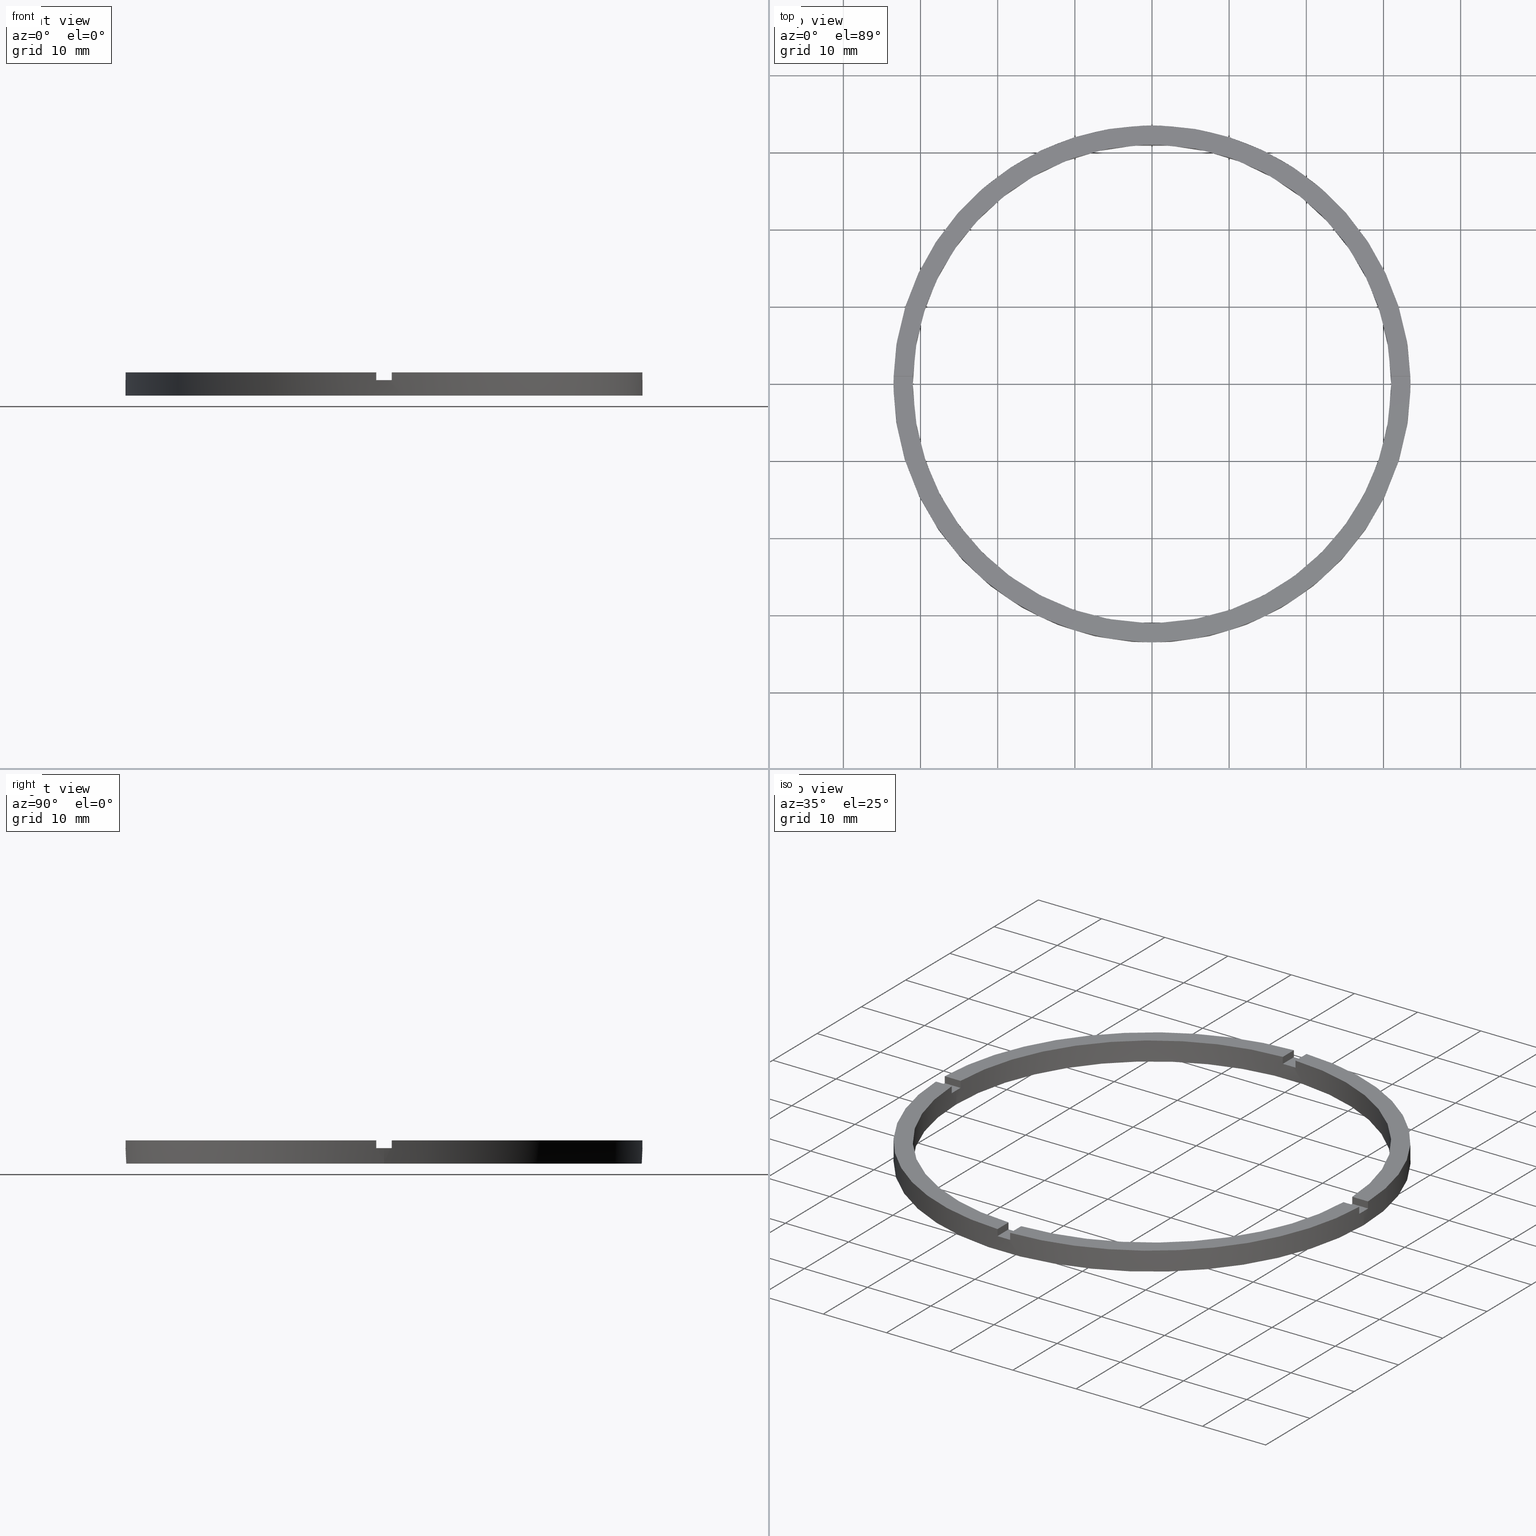
[diagram: canonical four-view strip — front | top / right | iso, engineering-drawing reading convention]
A machine part, canonical four-view strip (front | top / right | iso — engineering-drawing reading convention). The complete STEP part file that produces these views, byte-faithful:
ISO-10303-21;
HEADER;
FILE_DESCRIPTION (( 'STEP AP203' ),
    '1' );
FILE_NAME ('514138.step',
    '2024-12-26T02:41:10',
    ( 'MSI' ),
    ( '' ),
    'SwSTEP 2.0',
    'SolidWorks 2020',
    '' );
FILE_SCHEMA (( 'CONFIG_CONTROL_DESIGN' ));
ENDSEC;

DATA;
#1 = PLANE ( 'NONE',  #219 ) ;
#2 = AXIS2_PLACEMENT_3D ( 'NONE', #455, #492, #459 ) ;
#3 = LINE ( 'NONE', #165, #6 ) ;
#4 = EDGE_CURVE ( 'NONE', #711, #41, #443, .T. ) ;
#5 = CARTESIAN_POINT ( 'NONE',  ( 31.00000000000000000, 3.796405077356795115E-15, 3.000000000000000000 ) ) ;
#6 = VECTOR ( 'NONE', #636, 1000.000000000000000 ) ;
#7 = DIRECTION ( 'NONE',  ( 0.000000000000000000, 0.000000000000000000, 1.000000000000000000 ) ) ;
#8 = CIRCLE ( 'NONE', #248, 33.50000000000000000 ) ;
#9 = DIRECTION ( 'NONE',  ( 0.000000000000000000, 0.000000000000000000, 1.000000000000000000 ) ) ;
#10 = DIRECTION ( 'NONE',  ( -0.000000000000000000, -0.000000000000000000, -1.000000000000000000 ) ) ;
#11 = COORDINATED_UNIVERSAL_TIME_OFFSET ( 8, 0, .AHEAD. ) ;
#12 = CARTESIAN_POINT ( 'NONE',  ( 0.000000000000000000, 0.000000000000000000, 3.000000000000000000 ) ) ;
#13 = EDGE_CURVE ( 'NONE', #188, #596, #182, .T. ) ;
#14 = CARTESIAN_POINT ( 'NONE',  ( 0.000000000000000000, 0.000000000000000000, 3.000000000000000000 ) ) ;
#15 = EDGE_CURVE ( 'NONE', #110, #596, #704, .T. ) ;
#16 = EDGE_CURVE ( 'NONE', #709, #716, #365, .T. ) ;
#17 = DIRECTION ( 'NONE',  ( -0.000000000000000000, -0.000000000000000000, -1.000000000000000000 ) ) ;
#18 = DATE_AND_TIME ( #291, #28 ) ;
#19 = VERTEX_POINT ( 'NONE', #437 ) ;
#20 = ORIENTED_EDGE ( 'NONE', *, *, #486, .F. ) ;
#21 = LOCAL_TIME ( 10, 41, 10.00000000000000000, #48 ) ;
#22 = ORIENTED_EDGE ( 'NONE', *, *, #759, .T. ) ;
#23 = ORIENTED_EDGE ( 'NONE', *, *, #121, .F. ) ;
#24 = DIRECTION ( 'NONE',  ( 1.301042606982605074E-16, -1.000000000000000000, 0.000000000000000000 ) ) ;
#25 = EDGE_CURVE ( 'NONE', #188, #80, #120, .T. ) ;
#26 = APPROVAL_DATE_TIME ( #45, #695 ) ;
#27 = ORIENTED_EDGE ( 'NONE', *, *, #569, .F. ) ;
#28 = LOCAL_TIME ( 10, 41, 10.00000000000000000, #565 ) ;
#29 = DIRECTION ( 'NONE',  ( -0.000000000000000000, -0.000000000000000000, -1.000000000000000000 ) ) ;
#30 = DIRECTION ( 'NONE',  ( -0.000000000000000000, -1.000000000000000000, -0.000000000000000000 ) ) ;
#31 = ORIENTED_EDGE ( 'NONE', *, *, #668, .T. ) ;
#32 = LOCAL_TIME ( 10, 41, 10.00000000000000000, #11 ) ;
#33 = VERTEX_POINT ( 'NONE', #180 ) ;
#34 = APPROVAL_PERSON_ORGANIZATION ( #550, #144, #442 ) ;
#35 = COORDINATED_UNIVERSAL_TIME_OFFSET ( 8, 0, .AHEAD. ) ;
#36 = AXIS2_PLACEMENT_3D ( 'NONE', #680, #7, #164 ) ;
#37 = ORIENTED_EDGE ( 'NONE', *, *, #561, .T. ) ;
#38 = DIRECTION ( 'NONE',  ( -0.000000000000000000, 0.000000000000000000, 1.000000000000000000 ) ) ;
#39 = VECTOR ( 'NONE', #29, 1000.000000000000000 ) ;
#40 = AXIS2_PLACEMENT_3D ( 'NONE', #116, #269, #658 ) ;
#41 = VERTEX_POINT ( 'NONE', #523 ) ;
#42 = LINE ( 'NONE', #249, #68 ) ;
#43 = PLANE ( 'NONE',  #153 ) ;
#44 = ORIENTED_EDGE ( 'NONE', *, *, #740, .T. ) ;
#45 = DATE_AND_TIME ( #547, #32 ) ;
#46 = CIRCLE ( 'NONE', #192, 31.00000000000000000 ) ;
#47 = ORIENTED_EDGE ( 'NONE', *, *, #16, .T. ) ;
#48 = COORDINATED_UNIVERSAL_TIME_OFFSET ( 8, 0, .AHEAD. ) ;
#49 = ORIENTED_EDGE ( 'NONE', *, *, #690, .F. ) ;
#50 = LINE ( 'NONE', #340, #62 ) ;
#51 = AXIS2_PLACEMENT_3D ( 'NONE', #498, #468, #560 ) ;
#52 = ORIENTED_EDGE ( 'NONE', *, *, #736, .F. ) ;
#53 = CARTESIAN_POINT ( 'NONE',  ( 23.49999999999999289, 0.9999999999998411271, 3.000000000000000000 ) ) ;
#54 = VERTEX_POINT ( 'NONE', #666 ) ;
#55 = FACE_OUTER_BOUND ( 'NONE', #84, .T. ) ;
#56 = CARTESIAN_POINT ( 'NONE',  ( 0.9999999999998377964, -23.50000000000018119, 2.000000000000000000 ) ) ;
#57 = CC_DESIGN_PERSON_AND_ORGANIZATION_ASSIGNMENT ( #552, #531, ( #751 ) ) ;
#58 = FACE_OUTER_BOUND ( 'NONE', #642, .T. ) ;
#59 = ORIENTED_EDGE ( 'NONE', *, *, #759, .F. ) ;
#60 = ORIENTED_EDGE ( 'NONE', *, *, #503, .F. ) ;
#61 = ORIENTED_EDGE ( 'NONE', *, *, #217, .T. ) ;
#62 = VECTOR ( 'NONE', #421, 1000.000000000000000 ) ;
#63 = ORIENTED_EDGE ( 'NONE', *, *, #279, .F. ) ;
#64 = ORIENTED_EDGE ( 'NONE', *, *, #486, .T. ) ;
#65 = LINE ( 'NONE', #540, #706 ) ;
#66 = DIRECTION ( 'NONE',  ( 1.000000000000000000, 0.000000000000000000, 0.000000000000000000 ) ) ;
#67 = ORIENTED_EDGE ( 'NONE', *, *, #765, .T. ) ;
#68 = VECTOR ( 'NONE', #466, 1000.000000000000000 ) ;
#69 = ORIENTED_EDGE ( 'NONE', *, *, #424, .T. ) ;
#70 = EDGE_CURVE ( 'NONE', #407, #558, #101, .T. ) ;
#71 = DIRECTION ( 'NONE',  ( 0.000000000000000000, 0.000000000000000000, 1.000000000000000000 ) ) ;
#72 = DIRECTION ( 'NONE',  ( 0.000000000000000000, -0.000000000000000000, 1.000000000000000000 ) ) ;
#73 = DIRECTION ( 'NONE',  ( 0.000000000000000000, 0.000000000000000000, 1.000000000000000000 ) ) ;
#74 = DIRECTION ( 'NONE',  ( 0.000000000000000000, -0.000000000000000000, 1.000000000000000000 ) ) ;
#75 = ORIENTED_EDGE ( 'NONE', *, *, #129, .F. ) ;
#76 = ADVANCED_FACE ( 'NONE', ( #133 ), #755, .F. ) ;
#77 = CARTESIAN_POINT ( 'NONE',  ( -1.000000000000162315, -23.50000000000018119, 2.000000000000000000 ) ) ;
#78 = EDGE_CURVE ( 'NONE', #460, #581, #650, .T. ) ;
#79 = DESIGN_CONTEXT ( 'detailed design', #199, 'design' ) ;
#80 = VERTEX_POINT ( 'NONE', #436 ) ;
#81 = DIRECTION ( 'NONE',  ( 1.000000000000000000, 0.000000000000000000, -0.000000000000000000 ) ) ;
#82 = ORIENTED_EDGE ( 'NONE', *, *, #676, .T. ) ;
#83 = CARTESIAN_POINT ( 'NONE',  ( -1.000000000000160982, -33.48507130050644065, 3.000000000000000000 ) ) ;
#84 = EDGE_LOOP ( 'NONE', ( #335, #289, #146, #315 ) ) ;
#85 = DIRECTION ( 'NONE',  ( -1.301042606982605074E-16, 1.000000000000000000, -0.000000000000000000 ) ) ;
#86 = ORIENTED_EDGE ( 'NONE', *, *, #489, .F. ) ;
#87 = CC_DESIGN_PERSON_AND_ORGANIZATION_ASSIGNMENT ( #309, #757, ( #430 ) ) ;
#88 = DIRECTION ( 'NONE',  ( 1.000000000000000000, 0.000000000000000000, 0.000000000000000000 ) ) ;
#89 = DIRECTION ( 'NONE',  ( 1.000000000000000000, 0.000000000000000000, -0.000000000000000000 ) ) ;
#90 = AXIS2_PLACEMENT_3D ( 'NONE', #257, #553, #172 ) ;
#91 = ORIENTED_EDGE ( 'NONE', *, *, #162, .F. ) ;
#92 = CARTESIAN_POINT ( 'NONE',  ( 0.9999999999999753530, 30.98386676965933617, 2.000000000000000000 ) ) ;
#93 = CARTESIAN_POINT ( 'NONE',  ( 0.000000000000000000, 0.000000000000000000, 3.000000000000000000 ) ) ;
#94 = ORIENTED_EDGE ( 'NONE', *, *, #351, .T. ) ;
#95 = EDGE_CURVE ( 'NONE', #718, #587, #622, .T. ) ;
#96 = ORIENTED_EDGE ( 'NONE', *, *, #373, .F. ) ;
#97 = CARTESIAN_POINT ( 'NONE',  ( 30.98386676965933972, 0.9999999999998414602, 2.000000000000000000 ) ) ;
#98 = VECTOR ( 'NONE', #428, 1000.000000000000000 ) ;
#99 = ORIENTED_EDGE ( 'NONE', *, *, #279, .T. ) ;
#100 = DIRECTION ( 'NONE',  ( 1.000000000000000000, 6.505213034913025371E-17, 0.000000000000000000 ) ) ;
#101 = LINE ( 'NONE', #719, #382 ) ;
#102 = VECTOR ( 'NONE', #220, 1000.000000000000000 ) ;
#103 = DIRECTION ( 'NONE',  ( 0.000000000000000000, 0.000000000000000000, 1.000000000000000000 ) ) ;
#104 = CARTESIAN_POINT ( 'NONE',  ( -30.98386676965933617, 0.9999999999999740208, 3.000000000000000000 ) ) ;
#105 = ORIENTED_EDGE ( 'NONE', *, *, #70, .F. ) ;
#106 = EDGE_CURVE ( 'NONE', #54, #281, #389, .T. ) ;
#107 = FACE_OUTER_BOUND ( 'NONE', #617, .T. ) ;
#108 = EDGE_CURVE ( 'NONE', #80, #132, #635, .T. ) ;
#109 = EDGE_CURVE ( 'NONE', #299, #80, #379, .T. ) ;
#110 = VERTEX_POINT ( 'NONE', #282 ) ;
#111 = DIRECTION ( 'NONE',  ( 1.000000000000000000, 0.000000000000000000, 0.000000000000000000 ) ) ;
#112 = EDGE_LOOP ( 'NONE', ( #347, #64, #700, #640 ) ) ;
#113 = ORIENTED_EDGE ( 'NONE', *, *, #514, .T. ) ;
#114 = ORIENTED_EDGE ( 'NONE', *, *, #472, .F. ) ;
#115 = VERTEX_POINT ( 'NONE', #471 ) ;
#116 = CARTESIAN_POINT ( 'NONE',  ( 0.000000000000000000, 0.000000000000000000, 3.000000000000000000 ) ) ;
#117 = VERTEX_POINT ( 'NONE', #662 ) ;
#118 = ORIENTED_EDGE ( 'NONE', *, *, #677, .T. ) ;
#119 = VERTEX_POINT ( 'NONE', #275 ) ;
#120 = LINE ( 'NONE', #479, #372 ) ;
#121 = EDGE_CURVE ( 'NONE', #633, #54, #359, .T. ) ;
#122 = ORIENTED_EDGE ( 'NONE', *, *, #206, .F. ) ;
#123 = AXIS2_PLACEMENT_3D ( 'NONE', #742, #332, #261 ) ;
#124 = CARTESIAN_POINT ( 'NONE',  ( 0.000000000000000000, 0.000000000000000000, 3.000000000000000000 ) ) ;
#125 = EDGE_LOOP ( 'NONE', ( #322, #661, #654, #378, #625, #44 ) ) ;
#126 = LINE ( 'NONE', #665, #632 ) ;
#127 = CC_DESIGN_PERSON_AND_ORGANIZATION_ASSIGNMENT ( #521, #187, ( #140 ) ) ;
#128 = VERTEX_POINT ( 'NONE', #469 ) ;
#129 = EDGE_CURVE ( 'NONE', #276, #464, #646, .T. ) ;
#130 = CARTESIAN_POINT ( 'NONE',  ( 0.000000000000000000, 0.000000000000000000, 2.000000000000000000 ) ) ;
#131 = DIRECTION ( 'NONE',  ( -0.000000000000000000, 0.000000000000000000, 1.000000000000000000 ) ) ;
#132 = VERTEX_POINT ( 'NONE', #586 ) ;
#133 = FACE_OUTER_BOUND ( 'NONE', #181, .T. ) ;
#134 = PLANE ( 'NONE',  #274 ) ;
#135 = ORIENTED_EDGE ( 'NONE', *, *, #722, .T. ) ;
#136 = CARTESIAN_POINT ( 'NONE',  ( 33.50000000000000000, 4.102566777143633774E-15, 3.000000000000000000 ) ) ;
#137 = VECTOR ( 'NONE', #263, 1000.000000000000000 ) ;
#138 = EDGE_LOOP ( 'NONE', ( #583, #67, #203, #320 ) ) ;
#139 = VECTOR ( 'NONE', #655, 1000.000000000000000 ) ;
#140 = PRODUCT ( '514138', '514138', '', ( #477 ) ) ;
#141 = EDGE_LOOP ( 'NONE', ( #321, #311 ) ) ;
#142 = APPLICATION_CONTEXT ( 'configuration controlled 3d designs of mechanical parts and assemblies' ) ;
#143 = DIRECTION ( 'NONE',  ( 1.000000000000000000, 0.000000000000000000, -0.000000000000000000 ) ) ;
#144 = APPROVAL ( #194, 'δָ��' ) ;
#145 = CIRCLE ( 'NONE', #499, 33.50000000000000000 ) ;
#146 = ORIENTED_EDGE ( 'NONE', *, *, #108, .F. ) ;
#147 = ADVANCED_FACE ( 'NONE', ( #107 ), #43, .T. ) ;
#148 = ORIENTED_EDGE ( 'NONE', *, *, #472, .T. ) ;
#149 = CIRCLE ( 'NONE', #612, 31.00000000000000000 ) ;
#150 = CARTESIAN_POINT ( 'NONE',  ( -1.000000000000160982, -33.48507130050644065, 2.000000000000000000 ) ) ;
#151 = ORIENTED_EDGE ( 'NONE', *, *, #212, .T. ) ;
#152 = CARTESIAN_POINT ( 'NONE',  ( 0.000000000000000000, 0.000000000000000000, 2.000000000000000000 ) ) ;
#153 = AXIS2_PLACEMENT_3D ( 'NONE', #176, #475, #522 ) ;
#154 = VERTEX_POINT ( 'NONE', #594 ) ;
#155 = CYLINDRICAL_SURFACE ( 'NONE', #123, 33.50000000000000000 ) ;
#156 = DIRECTION ( 'NONE',  ( 0.000000000000000000, 0.000000000000000000, 1.000000000000000000 ) ) ;
#157 = FACE_OUTER_BOUND ( 'NONE', #575, .T. ) ;
#158 = CARTESIAN_POINT ( 'NONE',  ( 33.48507130050644776, 0.9999999999998416822, 3.000000000000000000 ) ) ;
#159 = FACE_OUTER_BOUND ( 'NONE', #369, .T. ) ;
#160 = DIRECTION ( 'NONE',  ( 0.000000000000000000, 0.000000000000000000, 1.000000000000000000 ) ) ;
#161 = CARTESIAN_POINT ( 'NONE',  ( 0.000000000000000000, 0.000000000000000000, 2.000000000000000000 ) ) ;
#162 = EDGE_CURVE ( 'NONE', #709, #344, #126, .T. ) ;
#163 = DIRECTION ( 'NONE',  ( 0.000000000000000000, 0.000000000000000000, 1.000000000000000000 ) ) ;
#164 = DIRECTION ( 'NONE',  ( 1.000000000000000000, 0.000000000000000000, 0.000000000000000000 ) ) ;
#165 = CARTESIAN_POINT ( 'NONE',  ( -33.48507130050644065, -1.000000000000026423, 3.000000000000000000 ) ) ;
#166 = EDGE_CURVE ( 'NONE', #191, #117, #393, .T. ) ;
#167 = AXIS2_PLACEMENT_3D ( 'NONE', #488, #412, #616 ) ;
#168 = AXIS2_PLACEMENT_3D ( 'NONE', #420, #735, #701 ) ;
#169 = PLANE ( 'NONE',  #195 ) ;
#170 = DIRECTION ( 'NONE',  ( -0.000000000000000000, -0.000000000000000000, -1.000000000000000000 ) ) ;
#171 = CARTESIAN_POINT ( 'NONE',  ( -30.98386676965933617, -1.000000000000025979, 3.000000000000000000 ) ) ;
#172 = DIRECTION ( 'NONE',  ( 1.000000000000000000, 0.000000000000000000, 0.000000000000000000 ) ) ;
#173 = CC_DESIGN_APPROVAL ( #144, ( #204 ) ) ;
#174 = DIRECTION ( 'NONE',  ( 0.000000000000000000, 0.000000000000000000, 1.000000000000000000 ) ) ;
#175 = CARTESIAN_POINT ( 'NONE',  ( 0.9999999999999753530, 23.50000000000000000, 2.000000000000000000 ) ) ;
#176 = CARTESIAN_POINT ( 'NONE',  ( 0.000000000000000000, 0.000000000000000000, 2.000000000000000000 ) ) ;
#177 = PLANE ( 'NONE',  #778 ) ;
#178 = APPLICATION_PROTOCOL_DEFINITION ( 'international standard', 'config_control_design', 1994, #142 ) ;
#179 = CARTESIAN_POINT ( 'NONE',  ( 0.9999999999999753530, 30.98386676965933617, 3.000000000000000000 ) ) ;
#180 = CARTESIAN_POINT ( 'NONE',  ( 33.48507130050644065, -1.000000000000158318, 3.000000000000000000 ) ) ;
#181 = EDGE_LOOP ( 'NONE', ( #554, #717, #463, #723 ) ) ;
#182 = CIRCLE ( 'NONE', #478, 33.50000000000000000 ) ;
#183 = EDGE_CURVE ( 'NONE', #119, #33, #396, .T. ) ;
#184 = EDGE_LOOP ( 'NONE', ( #358, #69, #96, #585 ) ) ;
#185 = ORIENTED_EDGE ( 'NONE', *, *, #15, .F. ) ;
#186 = ADVANCED_FACE ( 'NONE', ( #638 ), #416, .F. ) ;
#187 = PERSON_AND_ORGANIZATION_ROLE ( 'design_owner' ) ;
#188 = VERTEX_POINT ( 'NONE', #739 ) ;
#189 = VECTOR ( 'NONE', #595, 1000.000000000000000 ) ;
#190 = EDGE_CURVE ( 'NONE', #128, #110, #418, .T. ) ;
#191 = VERTEX_POINT ( 'NONE', #215 ) ;
#192 = AXIS2_PLACEMENT_3D ( 'NONE', #761, #103, #266 ) ;
#193 = CARTESIAN_POINT ( 'NONE',  ( 0.000000000000000000, 0.000000000000000000, 3.000000000000000000 ) ) ;
#194 = APPROVAL_STATUS ( 'not_yet_approved' ) ;
#195 = AXIS2_PLACEMENT_3D ( 'NONE', #255, #334, #429 ) ;
#196 = VERTEX_POINT ( 'NONE', #211 ) ;
#197 = ORIENTED_EDGE ( 'NONE', *, *, #4, .T. ) ;
#198 = EDGE_LOOP ( 'NONE', ( #611, #361 ) ) ;
#199 = APPLICATION_CONTEXT ( 'configuration controlled 3d designs of mechanical parts and assemblies' ) ;
#200 = AXIS2_PLACEMENT_3D ( 'NONE', #14, #696, #89 ) ;
#201 = ORIENTED_EDGE ( 'NONE', *, *, #439, .T. ) ;
#202 = CARTESIAN_POINT ( 'NONE',  ( 0.000000000000000000, 0.000000000000000000, 2.000000000000000000 ) ) ;
#203 = ORIENTED_EDGE ( 'NONE', *, *, #16, .F. ) ;
#204 = SECURITY_CLASSIFICATION ( '', '', #240 ) ;
#205 = VECTOR ( 'NONE', #627, 1000.000000000000000 ) ;
#206 = EDGE_CURVE ( 'NONE', #305, #33, #42, .T. ) ;
#207 = DIRECTION ( 'NONE',  ( 1.000000000000000000, 0.000000000000000000, -0.000000000000000000 ) ) ;
#208 = CARTESIAN_POINT ( 'NONE',  ( 30.98386676965933972, 0.9999999999998414602, 3.000000000000000000 ) ) ;
#209 = PRODUCT_RELATED_PRODUCT_CATEGORY ( 'detail', '', ( #140 ) ) ;
#210 = EDGE_CURVE ( 'NONE', #633, #299, #50, .T. ) ;
#211 = CARTESIAN_POINT ( 'NONE',  ( 31.00000000000000000, 3.796405077356795115E-15, 0.000000000000000000 ) ) ;
#212 = EDGE_CURVE ( 'NONE', #402, #559, #323, .T. ) ;
#213 = DIRECTION ( 'NONE',  ( 0.000000000000000000, 0.000000000000000000, 1.000000000000000000 ) ) ;
#214 = EDGE_CURVE ( 'NONE', #344, #603, #328, .T. ) ;
#215 = CARTESIAN_POINT ( 'NONE',  ( 30.98386676965932907, -1.000000000000158540, 2.000000000000000000 ) ) ;
#216 = CARTESIAN_POINT ( 'NONE',  ( 0.000000000000000000, 0.000000000000000000, 3.000000000000000000 ) ) ;
#217 = EDGE_CURVE ( 'NONE', #154, #407, #316, .T. ) ;
#218 = CARTESIAN_POINT ( 'NONE',  ( 0.000000000000000000, 0.000000000000000000, 3.000000000000000000 ) ) ;
#219 = AXIS2_PLACEMENT_3D ( 'NONE', #202, #74, #81 ) ;
#220 = DIRECTION ( 'NONE',  ( -1.000000000000000000, -6.505213034913025371E-17, -0.000000000000000000 ) ) ;
#221 = AXIS2_PLACEMENT_3D ( 'NONE', #314, #599, #304 ) ;
#222 = DIRECTION ( 'NONE',  ( 1.000000000000000000, 0.000000000000000000, 0.000000000000000000 ) ) ;
#223 = DIRECTION ( 'NONE',  ( 1.000000000000000000, -0.000000000000000000, 0.000000000000000000 ) ) ;
#224 = DIRECTION ( 'NONE',  ( 1.000000000000000000, 0.000000000000000000, 0.000000000000000000 ) ) ;
#225 = AXIS2_PLACEMENT_3D ( 'NONE', #744, #500, #505 ) ;
#226 = DIRECTION ( 'NONE',  ( -1.301042606982605074E-16, 1.000000000000000000, 0.000000000000000000 ) ) ;
#227 = ADVANCED_FACE ( 'NONE', ( #325 ), #641, .T. ) ;
#228 = DIRECTION ( 'NONE',  ( 1.000000000000000000, 0.000000000000000000, 0.000000000000000000 ) ) ;
#229 = DIRECTION ( 'NONE',  ( 0.000000000000000000, 0.000000000000000000, 1.000000000000000000 ) ) ;
#230 = FACE_OUTER_BOUND ( 'NONE', #184, .T. ) ;
#231 = LINE ( 'NONE', #582, #495 ) ;
#232 = ADVANCED_FACE ( 'NONE', ( #589 ), #644, .F. ) ;
#233 = VECTOR ( 'NONE', #738, 1000.000000000000000 ) ;
#234 = CARTESIAN_POINT ( 'NONE',  ( -33.50000000000000000, 0.000000000000000000, 3.000000000000000000 ) ) ;
#235 = PERSON_AND_ORGANIZATION_ROLE ( 'classification_officer' ) ;
#236 = FACE_OUTER_BOUND ( 'NONE', #198, .T. ) ;
#237 = CARTESIAN_POINT ( 'NONE',  ( 30.98386676965932907, -1.000000000000158540, 3.000000000000000000 ) ) ;
#238 = DIRECTION ( 'NONE',  ( -0.000000000000000000, -0.000000000000000000, -1.000000000000000000 ) ) ;
#239 = PLANE ( 'NONE',  #741 ) ;
#240 = SECURITY_CLASSIFICATION_LEVEL ( 'unclassified' ) ;
#241 = DIRECTION ( 'NONE',  ( 1.000000000000000000, 0.000000000000000000, -0.000000000000000000 ) ) ;
#242 = DIRECTION ( 'NONE',  ( -0.000000000000000000, -0.000000000000000000, -1.000000000000000000 ) ) ;
#243 = LINE ( 'NONE', #136, #777 ) ;
#244 = LINE ( 'NONE', #435, #533 ) ;
#245 = CARTESIAN_POINT ( 'NONE',  ( 30.98386676965933972, 0.9999999999998414602, 3.000000000000000000 ) ) ;
#246 = VECTOR ( 'NONE', #728, 1000.000000000000000 ) ;
#247 = CARTESIAN_POINT ( 'NONE',  ( 23.49999999999999289, 0.9999999999998411271, 2.000000000000000000 ) ) ;
#248 = AXIS2_PLACEMENT_3D ( 'NONE', #753, #652, #470 ) ;
#249 = CARTESIAN_POINT ( 'NONE',  ( 23.49999999999999289, -1.000000000000158984, 3.000000000000000000 ) ) ;
#250 = ORGANIZATION ( 'δָ��', 'δָ��', '' ) ;
#251 = COORDINATED_UNIVERSAL_TIME_OFFSET ( 8, 0, .AHEAD. ) ;
#252 = DATE_AND_TIME ( #767, #515 ) ;
#253 = AXIS2_PLACEMENT_3D ( 'NONE', #130, #510, #111 ) ;
#254 = CYLINDRICAL_SURFACE ( 'NONE', #381, 31.00000000000000000 ) ;
#255 = CARTESIAN_POINT ( 'NONE',  ( 23.49999999999999289, -1.000000000000158984, 2.000000000000000000 ) ) ;
#256 = FACE_OUTER_BOUND ( 'NONE', #405, .T. ) ;
#257 = CARTESIAN_POINT ( 'NONE',  ( 0.000000000000000000, 0.000000000000000000, 3.000000000000000000 ) ) ;
#258 = LINE ( 'NONE', #338, #262 ) ;
#259 = APPROVAL_PERSON_ORGANIZATION ( #520, #726, #544 ) ;
#260 = VECTOR ( 'NONE', #71, 1000.000000000000000 ) ;
#261 = DIRECTION ( 'NONE',  ( -1.000000000000000000, 0.000000000000000000, 0.000000000000000000 ) ) ;
#262 = VECTOR ( 'NONE', #426, 1000.000000000000000 ) ;
#263 = DIRECTION ( 'NONE',  ( 0.000000000000000000, 1.000000000000000000, 0.000000000000000000 ) ) ;
#264 = LINE ( 'NONE', #104, #518 ) ;
#265 = LINE ( 'NONE', #395, #246 ) ;
#266 = DIRECTION ( 'NONE',  ( 1.000000000000000000, 0.000000000000000000, 0.000000000000000000 ) ) ;
#267 = EDGE_CURVE ( 'NONE', #371, #637, #574, .T. ) ;
#268 = FACE_OUTER_BOUND ( 'NONE', #297, .T. ) ;
#269 = DIRECTION ( 'NONE',  ( 0.000000000000000000, 0.000000000000000000, 1.000000000000000000 ) ) ;
#270 = VECTOR ( 'NONE', #17, 1000.000000000000000 ) ;
#271 = DIRECTION ( 'NONE',  ( 0.000000000000000000, 0.000000000000000000, 1.000000000000000000 ) ) ;
#272 = PRODUCT_DEFINITION_SHAPE ( 'NONE', 'NONE',  #751 ) ;
#273 = ADVANCED_FACE ( 'NONE', ( #579 ), #177, .F. ) ;
#274 = AXIS2_PLACEMENT_3D ( 'NONE', #727, #730, #482 ) ;
#275 = CARTESIAN_POINT ( 'NONE',  ( 0.9999999999998391287, -33.48507130050644776, 3.000000000000000000 ) ) ;
#276 = VERTEX_POINT ( 'NONE', #355 ) ;
#277 = AXIS2_PLACEMENT_3D ( 'NONE', #684, #72, #228 ) ;
#278 =( NAMED_UNIT ( * ) SI_UNIT ( $, .STERADIAN. ) SOLID_ANGLE_UNIT ( ) );
#279 = EDGE_CURVE ( 'NONE', #191, #402, #46, .T. ) ;
#280 = ORIENTED_EDGE ( 'NONE', *, *, #121, .T. ) ;
#281 = VERTEX_POINT ( 'NONE', #598 ) ;
#282 = CARTESIAN_POINT ( 'NONE',  ( -30.98386676965933617, 0.9999999999999740208, 3.000000000000000000 ) ) ;
#283 = PERSON_AND_ORGANIZATION ( #375, #250 ) ;
#284 = CARTESIAN_POINT ( 'NONE',  ( -23.50000000000018829, 0.9999999999999754641, 3.000000000000000000 ) ) ;
#285 = CARTESIAN_POINT ( 'NONE',  ( 0.9999999999998377964, -23.50000000000018119, 2.000000000000000000 ) ) ;
#286 = APPROVAL_STATUS ( 'not_yet_approved' ) ;
#287 = ORIENTED_EDGE ( 'NONE', *, *, #514, .F. ) ;
#288 = PERSON_AND_ORGANIZATION ( #375, #250 ) ;
#289 = ORIENTED_EDGE ( 'NONE', *, *, #330, .T. ) ;
#290 = ORIENTED_EDGE ( 'NONE', *, *, #267, .F. ) ;
#291 = CALENDAR_DATE ( 2024, 26, 12 ) ;
#292 =( GEOMETRIC_REPRESENTATION_CONTEXT ( 3 ) GLOBAL_UNCERTAINTY_ASSIGNED_CONTEXT ( ( #399 ) ) GLOBAL_UNIT_ASSIGNED_CONTEXT ( ( #370, #480, #278 ) ) REPRESENTATION_CONTEXT ( 'NONE', 'WORKASPACE' ) );
#293 = ORIENTED_EDGE ( 'NONE', *, *, #645, .T. ) ;
#294 = PERSON_AND_ORGANIZATION ( #375, #250 ) ;
#295 = DATE_TIME_ROLE ( 'classification_date' ) ;
#296 = DATE_AND_TIME ( #298, #21 ) ;
#297 = EDGE_LOOP ( 'NONE', ( #86, #151, #342, #82, #23, #634, #659, #614, #657, #61, #631, #580 ) ) ;
#298 = CALENDAR_DATE ( 2024, 26, 12 ) ;
#299 = VERTEX_POINT ( 'NONE', #669 ) ;
#300 = SHAPE_DEFINITION_REPRESENTATION ( #272, #493 ) ;
#301 = ORIENTED_EDGE ( 'NONE', *, *, #25, .T. ) ;
#302 = CARTESIAN_POINT ( 'NONE',  ( -23.50000000000018829, 0.9999999999999754641, 2.000000000000000000 ) ) ;
#303 = ADVANCED_FACE ( 'NONE', ( #55 ), #134, .F. ) ;
#304 = DIRECTION ( 'NONE',  ( 1.000000000000000000, 0.000000000000000000, 0.000000000000000000 ) ) ;
#305 = VERTEX_POINT ( 'NONE', #237 ) ;
#306 = CARTESIAN_POINT ( 'NONE',  ( -33.50000000000000000, 0.000000000000000000, 2.000000000000000000 ) ) ;
#307 = LINE ( 'NONE', #609, #577 ) ;
#308 = ORIENTED_EDGE ( 'NONE', *, *, #106, .T. ) ;
#309 = PERSON_AND_ORGANIZATION ( #375, #250 ) ;
#310 = FACE_OUTER_BOUND ( 'NONE', #454, .T. ) ;
#311 = ORIENTED_EDGE ( 'NONE', *, *, #606, .T. ) ;
#312 = ORIENTED_EDGE ( 'NONE', *, *, #341, .T. ) ;
#313 = ORIENTED_EDGE ( 'NONE', *, *, #212, .F. ) ;
#314 = CARTESIAN_POINT ( 'NONE',  ( 0.000000000000000000, 0.000000000000000000, 0.000000000000000000 ) ) ;
#315 = ORIENTED_EDGE ( 'NONE', *, *, #25, .F. ) ;
#316 = CIRCLE ( 'NONE', #51, 31.00000000000000000 ) ;
#317 = ADVANCED_FACE ( 'NONE', ( #318 ), #763, .F. ) ;
#318 = FACE_OUTER_BOUND ( 'NONE', #353, .T. ) ;
#319 = VECTOR ( 'NONE', #502, 1000.000000000000000 ) ;
#320 = ORIENTED_EDGE ( 'NONE', *, *, #162, .T. ) ;
#321 = ORIENTED_EDGE ( 'NONE', *, *, #446, .T. ) ;
#322 = ORIENTED_EDGE ( 'NONE', *, *, #433, .T. ) ;
#323 = CIRCLE ( 'NONE', #729, 31.00000000000000000 ) ;
#324 = ORIENTED_EDGE ( 'NONE', *, *, #527, .T. ) ;
#325 = FACE_OUTER_BOUND ( 'NONE', #417, .T. ) ;
#326 = ORIENTED_EDGE ( 'NONE', *, *, #677, .F. ) ;
#327 = CARTESIAN_POINT ( 'NONE',  ( -31.00000000000000000, 0.000000000000000000, 0.000000000000000000 ) ) ;
#328 = LINE ( 'NONE', #406, #319 ) ;
#329 = ORIENTED_EDGE ( 'NONE', *, *, #686, .F. ) ;
#330 = EDGE_CURVE ( 'NONE', #128, #132, #307, .T. ) ;
#331 = AXIS2_PLACEMENT_3D ( 'NONE', #161, #452, #682 ) ;
#332 = DIRECTION ( 'NONE',  ( -0.000000000000000000, -0.000000000000000000, -1.000000000000000000 ) ) ;
#333 = AXIS2_PLACEMENT_3D ( 'NONE', #152, #156, #66 ) ;
#334 = DIRECTION ( 'NONE',  ( 6.505213034913025371E-17, -1.000000000000000000, 0.000000000000000000 ) ) ;
#335 = ORIENTED_EDGE ( 'NONE', *, *, #685, .T. ) ;
#336 = AXIS2_PLACEMENT_3D ( 'NONE', #175, #223, #749 ) ;
#337 = DIRECTION ( 'NONE',  ( 0.000000000000000000, 0.000000000000000000, 1.000000000000000000 ) ) ;
#338 = CARTESIAN_POINT ( 'NONE',  ( -1.000000000000161204, -30.98386676965932907, 3.000000000000000000 ) ) ;
#339 = CC_DESIGN_PERSON_AND_ORGANIZATION_ASSIGNMENT ( #288, #235, ( #204 ) ) ;
#340 = CARTESIAN_POINT ( 'NONE',  ( 0.9999999999999753530, 23.50000000000000000, 2.000000000000000000 ) ) ;
#341 = EDGE_CURVE ( 'NONE', #276, #603, #566, .T. ) ;
#342 = ORIENTED_EDGE ( 'NONE', *, *, #424, .F. ) ;
#343 = DIRECTION ( 'NONE',  ( 1.000000000000000000, 1.951563910473907735E-16, 0.000000000000000000 ) ) ;
#344 = VERTEX_POINT ( 'NONE', #150 ) ;
#345 = VECTOR ( 'NONE', #24, 1000.000000000000000 ) ;
#346 = PLANE ( 'NONE',  #588 ) ;
#347 = ORIENTED_EDGE ( 'NONE', *, *, #166, .F. ) ;
#348 = ADVANCED_FACE ( 'NONE', ( #58 ), #584, .T. ) ;
#349 = DIRECTION ( 'NONE',  ( 1.000000000000000000, 1.951563910473907735E-16, -0.000000000000000000 ) ) ;
#350 = LINE ( 'NONE', #567, #564 ) ;
#351 = EDGE_CURVE ( 'NONE', #119, #19, #65, .T. ) ;
#352 = ORIENTED_EDGE ( 'NONE', *, *, #765, .F. ) ;
#353 = EDGE_LOOP ( 'NONE', ( #573, #628, #720, #59 ) ) ;
#354 = CARTESIAN_POINT ( 'NONE',  ( 0.000000000000000000, 0.000000000000000000, 2.000000000000000000 ) ) ;
#355 = CARTESIAN_POINT ( 'NONE',  ( -33.48507130050644065, -1.000000000000026423, 3.000000000000000000 ) ) ;
#356 = DIRECTION ( 'NONE',  ( -0.000000000000000000, -0.000000000000000000, -1.000000000000000000 ) ) ;
#357 = ORIENTED_EDGE ( 'NONE', *, *, #214, .F. ) ;
#358 = ORIENTED_EDGE ( 'NONE', *, *, #78, .T. ) ;
#359 = LINE ( 'NONE', #179, #139 ) ;
#360 = DIRECTION ( 'NONE',  ( 1.301042606982605074E-16, -1.000000000000000000, 0.000000000000000000 ) ) ;
#361 = ORIENTED_EDGE ( 'NONE', *, *, #668, .F. ) ;
#362 = DIRECTION ( 'NONE',  ( 1.000000000000000000, 0.000000000000000000, 0.000000000000000000 ) ) ;
#363 = ORIENTED_EDGE ( 'NONE', *, *, #106, .F. ) ;
#364 = DIRECTION ( 'NONE',  ( -1.301042606982605074E-16, 1.000000000000000000, -0.000000000000000000 ) ) ;
#365 = CIRCLE ( 'NONE', #699, 31.00000000000000000 ) ;
#366 = ORIENTED_EDGE ( 'NONE', *, *, #210, .F. ) ;
#367 = ORIENTED_EDGE ( 'NONE', *, *, #561, .F. ) ;
#368 = VECTOR ( 'NONE', #592, 1000.000000000000000 ) ;
#369 = EDGE_LOOP ( 'NONE', ( #385, #392, #185, #403 ) ) ;
#370 =( LENGTH_UNIT ( ) NAMED_UNIT ( * ) SI_UNIT ( .MILLI., .METRE. ) );
#371 = VERTEX_POINT ( 'NONE', #306 ) ;
#372 = VECTOR ( 'NONE', #476, 1000.000000000000000 ) ;
#373 = EDGE_CURVE ( 'NONE', #41, #559, #724, .T. ) ;
#374 = ADVANCED_FACE ( 'NONE', ( #236, #748 ), #766, .F. ) ;
#375 = PERSON ( 'δָ��', 'δָ��', 'δָ��', ('δָ��'), ('δָ��'), ('δָ��') ) ;
#376 = VECTOR ( 'NONE', #100, 1000.000000000000000 ) ;
#377 = AXIS2_PLACEMENT_3D ( 'NONE', #302, #445, #383 ) ;
#378 = ORIENTED_EDGE ( 'NONE', *, *, #772, .F. ) ;
#379 = CIRCLE ( 'NONE', #253, 33.50000000000000000 ) ;
#380 = VERTEX_POINT ( 'NONE', #484 ) ;
#381 = AXIS2_PLACEMENT_3D ( 'NONE', #124, #238, #438 ) ;
#382 = VECTOR ( 'NONE', #756, 1000.000000000000000 ) ;
#383 = DIRECTION ( 'NONE',  ( -1.000000000000000000, -1.951563910473907735E-16, 0.000000000000000000 ) ) ;
#384 = DATE_TIME_ROLE ( 'creation_date' ) ;
#385 = ORIENTED_EDGE ( 'NONE', *, *, #685, .F. ) ;
#386 = ORIENTED_EDGE ( 'NONE', *, *, #4, .F. ) ;
#387 = FACE_OUTER_BOUND ( 'NONE', #125, .T. ) ;
#388 = ADVANCED_FACE ( 'NONE', ( #230 ), #689, .F. ) ;
#389 = LINE ( 'NONE', #710, #137 ) ;
#390 = ORIENTED_EDGE ( 'NONE', *, *, #341, .F. ) ;
#391 = AXIS2_PLACEMENT_3D ( 'NONE', #708, #9, #423 ) ;
#392 = ORIENTED_EDGE ( 'NONE', *, *, #13, .T. ) ;
#393 = LINE ( 'NONE', #703, #376 ) ;
#394 = CIRCLE ( 'NONE', #331, 33.50000000000000000 ) ;
#395 = CARTESIAN_POINT ( 'NONE',  ( 0.9999999999999753530, 33.48507130050644776, 3.000000000000000000 ) ) ;
#396 = CIRCLE ( 'NONE', #90, 33.50000000000000000 ) ;
#397 = ORIENTED_EDGE ( 'NONE', *, *, #597, .F. ) ;
#398 = LINE ( 'NONE', #425, #629 ) ;
#399 = UNCERTAINTY_MEASURE_WITH_UNIT (LENGTH_MEASURE( 1.000000000000000082E-05 ), #370, 'distance_accuracy_value', 'NONE');
#400 = CC_DESIGN_DATE_AND_TIME_ASSIGNMENT ( #18, #384, ( #751 ) ) ;
#401 = ORIENTED_EDGE ( 'NONE', *, *, #489, .T. ) ;
#402 = VERTEX_POINT ( 'NONE', #447 ) ;
#403 = ORIENTED_EDGE ( 'NONE', *, *, #190, .F. ) ;
#404 = PLANE ( 'NONE',  #2 ) ;
#405 = EDGE_LOOP ( 'NONE', ( #122, #409, #410, #600 ) ) ;
#406 = CARTESIAN_POINT ( 'NONE',  ( -1.000000000000160982, -33.48507130050644065, 3.000000000000000000 ) ) ;
#407 = VERTEX_POINT ( 'NONE', #675 ) ;
#408 = VECTOR ( 'NONE', #349, 1000.000000000000000 ) ;
#409 = ORIENTED_EDGE ( 'NONE', *, *, #467, .F. ) ;
#410 = ORIENTED_EDGE ( 'NONE', *, *, #351, .F. ) ;
#411 = CARTESIAN_POINT ( 'NONE',  ( -30.98386676965933617, -1.000000000000025979, 3.000000000000000000 ) ) ;
#412 = DIRECTION ( 'NONE',  ( 0.000000000000000000, 0.000000000000000000, 1.000000000000000000 ) ) ;
#413 = ORIENTED_EDGE ( 'NONE', *, *, #166, .T. ) ;
#414 = EDGE_CURVE ( 'NONE', #637, #648, #747, .T. ) ;
#415 = DIRECTION ( 'NONE',  ( -1.000000000000000000, 0.000000000000000000, 0.000000000000000000 ) ) ;
#416 = CYLINDRICAL_SURFACE ( 'NONE', #541, 31.00000000000000000 ) ;
#417 = EDGE_LOOP ( 'NONE', ( #60, #27, #75, #312 ) ) ;
#418 = CIRCLE ( 'NONE', #391, 31.00000000000000000 ) ;
#419 = ORIENTED_EDGE ( 'NONE', *, *, #503, .T. ) ;
#420 = CARTESIAN_POINT ( 'NONE',  ( 0.000000000000000000, 0.000000000000000000, 2.000000000000000000 ) ) ;
#421 = DIRECTION ( 'NONE',  ( 0.000000000000000000, 1.000000000000000000, 0.000000000000000000 ) ) ;
#422 = DIRECTION ( 'NONE',  ( 0.000000000000000000, 0.000000000000000000, 1.000000000000000000 ) ) ;
#423 = DIRECTION ( 'NONE',  ( 1.000000000000000000, 0.000000000000000000, 0.000000000000000000 ) ) ;
#424 = EDGE_CURVE ( 'NONE', #581, #559, #494, .T. ) ;
#425 = CARTESIAN_POINT ( 'NONE',  ( 0.9999999999998389066, -30.98386676965933972, 3.000000000000000000 ) ) ;
#426 = DIRECTION ( 'NONE',  ( 0.000000000000000000, 0.000000000000000000, 1.000000000000000000 ) ) ;
#427 = DIRECTION ( 'NONE',  ( 1.000000000000000000, 0.000000000000000000, 0.000000000000000000 ) ) ;
#428 = DIRECTION ( 'NONE',  ( -0.000000000000000000, -1.000000000000000000, -0.000000000000000000 ) ) ;
#429 = DIRECTION ( 'NONE',  ( 1.000000000000000000, 6.505213034913025371E-17, 0.000000000000000000 ) ) ;
#430 = PRODUCT_DEFINITION_FORMATION_WITH_SPECIFIED_SOURCE ( '�κ�', '', #140, .NOT_KNOWN. ) ;
#431 = DIRECTION ( 'NONE',  ( 1.951563910473907735E-16, -1.000000000000000000, 0.000000000000000000 ) ) ;
#432 = ADVANCED_FACE ( 'NONE', ( #496 ), #239, .T. ) ;
#433 = EDGE_CURVE ( 'NONE', #115, #371, #145, .T. ) ;
#434 = CARTESIAN_POINT ( 'NONE',  ( 0.000000000000000000, 0.000000000000000000, 3.000000000000000000 ) ) ;
#435 = CARTESIAN_POINT ( 'NONE',  ( -23.50000000000018829, 0.9999999999999754641, 2.000000000000000000 ) ) ;
#436 = CARTESIAN_POINT ( 'NONE',  ( -1.000000000000024647, 33.48507130050644065, 2.000000000000000000 ) ) ;
#437 = CARTESIAN_POINT ( 'NONE',  ( 0.9999999999998389066, -30.98386676965933972, 3.000000000000000000 ) ) ;
#438 = DIRECTION ( 'NONE',  ( -1.000000000000000000, 0.000000000000000000, 0.000000000000000000 ) ) ;
#439 = EDGE_CURVE ( 'NONE', #117, #711, #394, .T. ) ;
#440 = ORIENTED_EDGE ( 'NONE', *, *, #109, .F. ) ;
#441 = DIRECTION ( 'NONE',  ( 1.000000000000000000, 0.000000000000000000, 0.000000000000000000 ) ) ;
#442 = APPROVAL_ROLE ( '' ) ;
#443 = CIRCLE ( 'NONE', #225, 33.50000000000000000 ) ;
#444 = ADVANCED_FACE ( 'NONE', ( #387 ), #491, .T. ) ;
#445 = DIRECTION ( 'NONE',  ( -1.951563910473907735E-16, 1.000000000000000000, 0.000000000000000000 ) ) ;
#446 = EDGE_CURVE ( 'NONE', #558, #196, #663, .T. ) ;
#447 = CARTESIAN_POINT ( 'NONE',  ( 31.00000000000000000, 3.796405077356795115E-15, 2.000000000000000000 ) ) ;
#448 = AXIS2_PLACEMENT_3D ( 'NONE', #619, #734, #241 ) ;
#449 = ADVANCED_FACE ( 'NONE', ( #647 ), #1, .T. ) ;
#450 = CARTESIAN_POINT ( 'NONE',  ( -33.48507130050644776, 0.9999999999999735767, 3.000000000000000000 ) ) ;
#451 = ORIENTED_EDGE ( 'NONE', *, *, #605, .F. ) ;
#452 = DIRECTION ( 'NONE',  ( 0.000000000000000000, 0.000000000000000000, 1.000000000000000000 ) ) ;
#453 = EDGE_LOOP ( 'NONE', ( #651, #590, #52, #543 ) ) ;
#454 = EDGE_LOOP ( 'NONE', ( #91, #37, #419, #357 ) ) ;
#455 = CARTESIAN_POINT ( 'NONE',  ( 0.000000000000000000, 0.000000000000000000, 3.000000000000000000 ) ) ;
#456 = ORIENTED_EDGE ( 'NONE', *, *, #446, .F. ) ;
#457 = AXIS2_PLACEMENT_3D ( 'NONE', #624, #213, #88 ) ;
#458 = EDGE_LOOP ( 'NONE', ( #366, #280, #308, #623 ) ) ;
#459 = DIRECTION ( 'NONE',  ( 1.000000000000000000, 0.000000000000000000, -0.000000000000000000 ) ) ;
#460 = VERTEX_POINT ( 'NONE', #158 ) ;
#461 = DIRECTION ( 'NONE',  ( 1.000000000000000000, 0.000000000000000000, 0.000000000000000000 ) ) ;
#462 = EDGE_LOOP ( 'NONE', ( #363, #712, #626, #118 ) ) ;
#463 = ORIENTED_EDGE ( 'NONE', *, *, #95, .F. ) ;
#464 = VERTEX_POINT ( 'NONE', #171 ) ;
#465 = PLANE ( 'NONE',  #474 ) ;
#466 = DIRECTION ( 'NONE',  ( 1.000000000000000000, 6.505213034913025371E-17, 0.000000000000000000 ) ) ;
#467 = EDGE_CURVE ( 'NONE', #19, #305, #149, .T. ) ;
#468 = DIRECTION ( 'NONE',  ( 0.000000000000000000, 0.000000000000000000, 1.000000000000000000 ) ) ;
#469 = CARTESIAN_POINT ( 'NONE',  ( -1.000000000000024647, 30.98386676965933617, 3.000000000000000000 ) ) ;
#470 = DIRECTION ( 'NONE',  ( 1.000000000000000000, 0.000000000000000000, 0.000000000000000000 ) ) ;
#471 = CARTESIAN_POINT ( 'NONE',  ( -33.48507130050644776, 0.9999999999999735767, 2.000000000000000000 ) ) ;
#472 = EDGE_CURVE ( 'NONE', #19, #716, #398, .T. ) ;
#473 = AXIS2_PLACEMENT_3D ( 'NONE', #193, #537, #441 ) ;
#474 = AXIS2_PLACEMENT_3D ( 'NONE', #649, #163, #207 ) ;
#475 = DIRECTION ( 'NONE',  ( 0.000000000000000000, 0.000000000000000000, 1.000000000000000000 ) ) ;
#476 = DIRECTION ( 'NONE',  ( -0.000000000000000000, -0.000000000000000000, -1.000000000000000000 ) ) ;
#477 = MECHANICAL_CONTEXT ( 'NONE', #142, 'mechanical' ) ;
#478 = AXIS2_PLACEMENT_3D ( 'NONE', #434, #229, #224 ) ;
#479 = CARTESIAN_POINT ( 'NONE',  ( -1.000000000000024647, 33.48507130050644065, 3.000000000000000000 ) ) ;
#480 =( NAMED_UNIT ( * ) PLANE_ANGLE_UNIT ( ) SI_UNIT ( $, .RADIAN. ) );
#481 = CC_DESIGN_DATE_AND_TIME_ASSIGNMENT ( #570, #295, ( #204 ) ) ;
#482 = DIRECTION ( 'NONE',  ( 0.000000000000000000, 0.000000000000000000, 1.000000000000000000 ) ) ;
#483 = ADVANCED_FACE ( 'NONE', ( #157 ), #155, .T. ) ;
#484 = CARTESIAN_POINT ( 'NONE',  ( -1.000000000000161204, -30.98386676965932907, 3.000000000000000000 ) ) ;
#485 = VECTOR ( 'NONE', #160, 1000.000000000000000 ) ;
#486 = EDGE_CURVE ( 'NONE', #191, #305, #231, .T. ) ;
#487 = DIRECTION ( 'NONE',  ( -0.000000000000000000, 0.000000000000000000, 1.000000000000000000 ) ) ;
#488 = CARTESIAN_POINT ( 'NONE',  ( 0.000000000000000000, 0.000000000000000000, 0.000000000000000000 ) ) ;
#489 = EDGE_CURVE ( 'NONE', #402, #196, #745, .T. ) ;
#490 = VECTOR ( 'NONE', #242, 1000.000000000000000 ) ;
#491 = PLANE ( 'NONE',  #448 ) ;
#492 = DIRECTION ( 'NONE',  ( 0.000000000000000000, 0.000000000000000000, 1.000000000000000000 ) ) ;
#493 = ADVANCED_BREP_SHAPE_REPRESENTATION ( '514138', ( #715, #221 ), #292 ) ;
#494 = LINE ( 'NONE', #208, #233 ) ;
#495 = VECTOR ( 'NONE', #422, 1000.000000000000000 ) ;
#496 = FACE_OUTER_BOUND ( 'NONE', #462, .T. ) ;
#497 = PLANE ( 'NONE',  #571 ) ;
#498 = CARTESIAN_POINT ( 'NONE',  ( 0.000000000000000000, 0.000000000000000000, 2.000000000000000000 ) ) ;
#499 = AXIS2_PLACEMENT_3D ( 'NONE', #774, #73, #781 ) ;
#500 = DIRECTION ( 'NONE',  ( 0.000000000000000000, 0.000000000000000000, 1.000000000000000000 ) ) ;
#501 = DIRECTION ( 'NONE',  ( -0.000000000000000000, -0.000000000000000000, -1.000000000000000000 ) ) ;
#502 = DIRECTION ( 'NONE',  ( 0.000000000000000000, 0.000000000000000000, 1.000000000000000000 ) ) ;
#503 = EDGE_CURVE ( 'NONE', #380, #603, #607, .T. ) ;
#504 = CARTESIAN_POINT ( 'NONE',  ( 33.48507130050644065, -1.000000000000158318, 3.000000000000000000 ) ) ;
#505 = DIRECTION ( 'NONE',  ( 1.000000000000000000, 0.000000000000000000, 0.000000000000000000 ) ) ;
#506 = CC_DESIGN_PERSON_AND_ORGANIZATION_ASSIGNMENT ( #294, #604, ( #430 ) ) ;
#507 = DIRECTION ( 'NONE',  ( 1.000000000000000000, 0.000000000000000000, 0.000000000000000000 ) ) ;
#508 = CARTESIAN_POINT ( 'NONE',  ( -30.98386676965933617, -1.000000000000025979, 2.000000000000000000 ) ) ;
#509 = VECTOR ( 'NONE', #643, 1000.000000000000000 ) ;
#510 = DIRECTION ( 'NONE',  ( 0.000000000000000000, -0.000000000000000000, 1.000000000000000000 ) ) ;
#511 = FACE_OUTER_BOUND ( 'NONE', #138, .T. ) ;
#512 = CIRCLE ( 'NONE', #277, 31.00000000000000000 ) ;
#513 = DIRECTION ( 'NONE',  ( 0.000000000000000000, 0.000000000000000000, 1.000000000000000000 ) ) ;
#514 = EDGE_CURVE ( 'NONE', #119, #621, #350, .T. ) ;
#515 = LOCAL_TIME ( 10, 41, 10.00000000000000000, #251 ) ;
#516 = CARTESIAN_POINT ( 'NONE',  ( -23.50000000000018829, -1.000000000000024425, 3.000000000000000000 ) ) ;
#517 = ADVANCED_FACE ( 'NONE', ( #310 ), #497, .F. ) ;
#518 = VECTOR ( 'NONE', #174, 1000.000000000000000 ) ;
#519 = LINE ( 'NONE', #56, #526 ) ;
#520 = PERSON_AND_ORGANIZATION ( #375, #250 ) ;
#521 = PERSON_AND_ORGANIZATION ( #375, #250 ) ;
#522 = DIRECTION ( 'NONE',  ( 1.000000000000000000, 0.000000000000000000, -0.000000000000000000 ) ) ;
#523 = CARTESIAN_POINT ( 'NONE',  ( 33.48507130050644776, 0.9999999999998416822, 2.000000000000000000 ) ) ;
#524 = CIRCLE ( 'NONE', #168, 33.50000000000000000 ) ;
#525 = ADVANCED_FACE ( 'NONE', ( #159 ), #465, .T. ) ;
#526 = VECTOR ( 'NONE', #364, 1000.000000000000000 ) ;
#527 = EDGE_CURVE ( 'NONE', #117, #33, #671, .T. ) ;
#528 = CIRCLE ( 'NONE', #770, 31.00000000000000000 ) ;
#529 = CIRCLE ( 'NONE', #743, 33.50000000000000000 ) ;
#530 = LINE ( 'NONE', #411, #270 ) ;
#531 = PERSON_AND_ORGANIZATION_ROLE ( 'creator' ) ;
#532 = CIRCLE ( 'NONE', #40, 33.50000000000000000 ) ;
#533 = VECTOR ( 'NONE', #764, 1000.000000000000000 ) ;
#534 = DIRECTION ( 'NONE',  ( -0.000000000000000000, -0.000000000000000000, -1.000000000000000000 ) ) ;
#535 = CC_DESIGN_SECURITY_CLASSIFICATION ( #204, ( #430 ) ) ;
#536 = APPROVAL_PERSON_ORGANIZATION ( #283, #695, #721 ) ;
#537 = DIRECTION ( 'NONE',  ( 0.000000000000000000, 0.000000000000000000, 1.000000000000000000 ) ) ;
#538 = LOCAL_TIME ( 10, 41, 10.00000000000000000, #35 ) ;
#539 = DIRECTION ( 'NONE',  ( 1.000000000000000000, 0.000000000000000000, 0.000000000000000000 ) ) ;
#540 = CARTESIAN_POINT ( 'NONE',  ( 0.9999999999998377964, -23.50000000000018119, 3.000000000000000000 ) ) ;
#541 = AXIS2_PLACEMENT_3D ( 'NONE', #93, #170, #415 ) ;
#542 = ORIENTED_EDGE ( 'NONE', *, *, #183, .F. ) ;
#543 = ORIENTED_EDGE ( 'NONE', *, *, #210, .T. ) ;
#544 = APPROVAL_ROLE ( '' ) ;
#545 = DIRECTION ( 'NONE',  ( -1.000000000000000000, -6.505213034913025371E-17, 0.000000000000000000 ) ) ;
#546 = ORIENTED_EDGE ( 'NONE', *, *, #214, .T. ) ;
#547 = CALENDAR_DATE ( 2024, 26, 12 ) ;
#548 = CARTESIAN_POINT ( 'NONE',  ( 0.000000000000000000, 0.000000000000000000, 0.000000000000000000 ) ) ;
#549 = ORIENTED_EDGE ( 'NONE', *, *, #690, .T. ) ;
#550 = PERSON_AND_ORGANIZATION ( #375, #250 ) ;
#551 = CARTESIAN_POINT ( 'NONE',  ( 0.9999999999998391287, -33.48507130050644776, 2.000000000000000000 ) ) ;
#552 = PERSON_AND_ORGANIZATION ( #375, #250 ) ;
#553 = DIRECTION ( 'NONE',  ( 0.000000000000000000, 0.000000000000000000, 1.000000000000000000 ) ) ;
#554 = ORIENTED_EDGE ( 'NONE', *, *, #129, .T. ) ;
#555 = CALENDAR_DATE ( 2024, 26, 12 ) ;
#556 = ORIENTED_EDGE ( 'NONE', *, *, #772, .T. ) ;
#557 = CARTESIAN_POINT ( 'NONE',  ( -33.50000000000000000, 0.000000000000000000, 0.000000000000000000 ) ) ;
#558 = VERTEX_POINT ( 'NONE', #327 ) ;
#559 = VERTEX_POINT ( 'NONE', #97 ) ;
#560 = DIRECTION ( 'NONE',  ( 1.000000000000000000, 0.000000000000000000, 0.000000000000000000 ) ) ;
#561 = EDGE_CURVE ( 'NONE', #709, #380, #258, .T. ) ;
#562 = APPROVAL_DATE_TIME ( #296, #144 ) ;
#563 = ORIENTED_EDGE ( 'NONE', *, *, #569, .T. ) ;
#564 = VECTOR ( 'NONE', #501, 1000.000000000000000 ) ;
#565 = COORDINATED_UNIVERSAL_TIME_OFFSET ( 8, 0, .AHEAD. ) ;
#566 = CIRCLE ( 'NONE', #473, 33.50000000000000000 ) ;
#567 = CARTESIAN_POINT ( 'NONE',  ( 0.9999999999998391287, -33.48507130050644776, 3.000000000000000000 ) ) ;
#568 = ORIENTED_EDGE ( 'NONE', *, *, #414, .T. ) ;
#569 = EDGE_CURVE ( 'NONE', #464, #380, #771, .T. ) ;
#570 = DATE_AND_TIME ( #555, #538 ) ;
#571 = AXIS2_PLACEMENT_3D ( 'NONE', #77, #688, #683 ) ;
#572 = APPROVAL_DATE_TIME ( #252, #726 ) ;
#573 = ORIENTED_EDGE ( 'NONE', *, *, #740, .F. ) ;
#574 = LINE ( 'NONE', #234, #39 ) ;
#575 = EDGE_LOOP ( 'NONE', ( #386, #549, #31, #290, #698, #22, #691, #301, #440, #135, #326, #713 ) ) ;
#576 = CARTESIAN_POINT ( 'NONE',  ( 0.000000000000000000, 0.000000000000000000, 2.000000000000000000 ) ) ;
#577 = VECTOR ( 'NONE', #534, 1000.000000000000000 ) ;
#578 = EDGE_LOOP ( 'NONE', ( #94, #148, #352, #287 ) ) ;
#579 = FACE_OUTER_BOUND ( 'NONE', #578, .T. ) ;
#580 = ORIENTED_EDGE ( 'NONE', *, *, #606, .F. ) ;
#581 = VERTEX_POINT ( 'NONE', #245 ) ;
#582 = CARTESIAN_POINT ( 'NONE',  ( 30.98386676965932907, -1.000000000000158540, 3.000000000000000000 ) ) ;
#583 = ORIENTED_EDGE ( 'NONE', *, *, #686, .T. ) ;
#584 = CYLINDRICAL_SURFACE ( 'NONE', #692, 33.50000000000000000 ) ;
#585 = ORIENTED_EDGE ( 'NONE', *, *, #630, .F. ) ;
#586 = CARTESIAN_POINT ( 'NONE',  ( -1.000000000000024647, 30.98386676965933617, 2.000000000000000000 ) ) ;
#587 = VERTEX_POINT ( 'NONE', #508 ) ;
#588 = AXIS2_PLACEMENT_3D ( 'NONE', #705, #38, #222 ) ;
#589 = FACE_OUTER_BOUND ( 'NONE', #458, .T. ) ;
#590 = ORIENTED_EDGE ( 'NONE', *, *, #108, .T. ) ;
#591 = DIRECTION ( 'NONE',  ( 1.000000000000000000, 0.000000000000000000, 0.000000000000000000 ) ) ;
#592 = DIRECTION ( 'NONE',  ( 1.000000000000000000, 1.951563910473907735E-16, -0.000000000000000000 ) ) ;
#593 = AXIS2_PLACEMENT_3D ( 'NONE', #752, #431, #343 ) ;
#594 = CARTESIAN_POINT ( 'NONE',  ( -30.98386676965933617, 0.9999999999999740208, 2.000000000000000000 ) ) ;
#595 = DIRECTION ( 'NONE',  ( -1.000000000000000000, -1.951563910473907735E-16, 0.000000000000000000 ) ) ;
#596 = VERTEX_POINT ( 'NONE', #733 ) ;
#597 = EDGE_CURVE ( 'NONE', #371, #718, #524, .T. ) ;
#598 = CARTESIAN_POINT ( 'NONE',  ( 0.9999999999999753530, 33.48507130050644776, 3.000000000000000000 ) ) ;
#599 = DIRECTION ( 'NONE',  ( 0.000000000000000000, 0.000000000000000000, 1.000000000000000000 ) ) ;
#600 = ORIENTED_EDGE ( 'NONE', *, *, #183, .T. ) ;
#601 = ORIENTED_EDGE ( 'NONE', *, *, #439, .F. ) ;
#602 = DIRECTION ( 'NONE',  ( 1.000000000000000000, 1.301042606982605074E-16, 0.000000000000000000 ) ) ;
#603 = VERTEX_POINT ( 'NONE', #83 ) ;
#604 = PERSON_AND_ORGANIZATION_ROLE ( 'creator' ) ;
#605 = EDGE_CURVE ( 'NONE', #464, #587, #530, .T. ) ;
#606 = EDGE_CURVE ( 'NONE', #196, #558, #528, .T. ) ;
#607 = LINE ( 'NONE', #693, #345 ) ;
#608 = ADVANCED_FACE ( 'NONE', ( #256 ), #404, .T. ) ;
#609 = CARTESIAN_POINT ( 'NONE',  ( -1.000000000000024647, 30.98386676965933617, 3.000000000000000000 ) ) ;
#610 = DIRECTION ( 'NONE',  ( -6.505213034913025371E-17, 1.000000000000000000, 0.000000000000000000 ) ) ;
#611 = ORIENTED_EDGE ( 'NONE', *, *, #414, .F. ) ;
#612 = AXIS2_PLACEMENT_3D ( 'NONE', #216, #337, #507 ) ;
#613 = CARTESIAN_POINT ( 'NONE',  ( 0.000000000000000000, 0.000000000000000000, 3.000000000000000000 ) ) ;
#614 = ORIENTED_EDGE ( 'NONE', *, *, #190, .T. ) ;
#615 = CARTESIAN_POINT ( 'NONE',  ( 0.000000000000000000, 0.000000000000000000, 2.000000000000000000 ) ) ;
#616 = DIRECTION ( 'NONE',  ( 1.000000000000000000, 0.000000000000000000, -0.000000000000000000 ) ) ;
#617 = EDGE_LOOP ( 'NONE', ( #201, #197, #620, #313, #63, #413 ) ) ;
#618 = AXIS2_PLACEMENT_3D ( 'NONE', #218, #513, #591 ) ;
#619 = CARTESIAN_POINT ( 'NONE',  ( 0.000000000000000000, 0.000000000000000000, 2.000000000000000000 ) ) ;
#620 = ORIENTED_EDGE ( 'NONE', *, *, #373, .T. ) ;
#621 = VERTEX_POINT ( 'NONE', #551 ) ;
#622 = LINE ( 'NONE', #754, #408 ) ;
#623 = ORIENTED_EDGE ( 'NONE', *, *, #722, .F. ) ;
#624 = CARTESIAN_POINT ( 'NONE',  ( 0.000000000000000000, 0.000000000000000000, 3.000000000000000000 ) ) ;
#625 = ORIENTED_EDGE ( 'NONE', *, *, #217, .F. ) ;
#626 = ORIENTED_EDGE ( 'NONE', *, *, #78, .F. ) ;
#627 = DIRECTION ( 'NONE',  ( -1.000000000000000000, -6.505213034913025371E-17, -0.000000000000000000 ) ) ;
#628 = ORIENTED_EDGE ( 'NONE', *, *, #673, .T. ) ;
#629 = VECTOR ( 'NONE', #10, 1000.000000000000000 ) ;
#630 = EDGE_CURVE ( 'NONE', #460, #41, #783, .T. ) ;
#631 = ORIENTED_EDGE ( 'NONE', *, *, #70, .T. ) ;
#632 = VECTOR ( 'NONE', #360, 1000.000000000000000 ) ;
#633 = VERTEX_POINT ( 'NONE', #92 ) ;
#634 = ORIENTED_EDGE ( 'NONE', *, *, #736, .T. ) ;
#635 = LINE ( 'NONE', #714, #98 ) ;
#636 = DIRECTION ( 'NONE',  ( -0.000000000000000000, -0.000000000000000000, -1.000000000000000000 ) ) ;
#637 = VERTEX_POINT ( 'NONE', #557 ) ;
#638 = FACE_OUTER_BOUND ( 'NONE', #707, .T. ) ;
#639 = DIRECTION ( 'NONE',  ( -1.000000000000000000, 0.000000000000000000, 0.000000000000000000 ) ) ;
#640 = ORIENTED_EDGE ( 'NONE', *, *, #527, .F. ) ;
#641 = PLANE ( 'NONE',  #200 ) ;
#642 = EDGE_LOOP ( 'NONE', ( #49, #601, #324, #542, #113, #329, #546, #390, #293, #397, #656, #568 ) ) ;
#643 = DIRECTION ( 'NONE',  ( -0.000000000000000000, -0.000000000000000000, -1.000000000000000000 ) ) ;
#644 = PLANE ( 'NONE',  #336 ) ;
#645 = EDGE_CURVE ( 'NONE', #276, #718, #3, .T. ) ;
#646 = LINE ( 'NONE', #516, #368 ) ;
#647 = FACE_OUTER_BOUND ( 'NONE', #453, .T. ) ;
#648 = VERTEX_POINT ( 'NONE', #697 ) ;
#649 = CARTESIAN_POINT ( 'NONE',  ( 0.000000000000000000, 0.000000000000000000, 3.000000000000000000 ) ) ;
#650 = LINE ( 'NONE', #53, #102 ) ;
#651 = ORIENTED_EDGE ( 'NONE', *, *, #109, .T. ) ;
#652 = DIRECTION ( 'NONE',  ( 0.000000000000000000, 0.000000000000000000, 1.000000000000000000 ) ) ;
#653 = CLOSED_SHELL ( 'NONE', ( #186, #483, #525, #432, #608, #227, #374, #348, #776, #76, #317, #444, #273, #517, #681, #388, #667, #147, #303, #232, #449 ) ) ;
#654 = ORIENTED_EDGE ( 'NONE', *, *, #95, .T. ) ;
#655 = DIRECTION ( 'NONE',  ( 0.000000000000000000, 0.000000000000000000, 1.000000000000000000 ) ) ;
#656 = ORIENTED_EDGE ( 'NONE', *, *, #267, .T. ) ;
#657 = ORIENTED_EDGE ( 'NONE', *, *, #673, .F. ) ;
#658 = DIRECTION ( 'NONE',  ( 1.000000000000000000, 0.000000000000000000, 0.000000000000000000 ) ) ;
#659 = ORIENTED_EDGE ( 'NONE', *, *, #330, .F. ) ;
#660 = AXIS2_PLACEMENT_3D ( 'NONE', #247, #610, #545 ) ;
#661 = ORIENTED_EDGE ( 'NONE', *, *, #597, .T. ) ;
#662 = CARTESIAN_POINT ( 'NONE',  ( 33.48507130050644065, -1.000000000000158318, 2.000000000000000000 ) ) ;
#663 = CIRCLE ( 'NONE', #768, 31.00000000000000000 ) ;
#664 = CC_DESIGN_APPROVAL ( #726, ( #751 ) ) ;
#665 = CARTESIAN_POINT ( 'NONE',  ( -1.000000000000162315, -23.50000000000018119, 2.000000000000000000 ) ) ;
#666 = CARTESIAN_POINT ( 'NONE',  ( 0.9999999999999753530, 30.98386676965933617, 3.000000000000000000 ) ) ;
#667 = ADVANCED_FACE ( 'NONE', ( #775 ), #169, .F. ) ;
#668 = EDGE_CURVE ( 'NONE', #648, #637, #8, .T. ) ;
#669 = CARTESIAN_POINT ( 'NONE',  ( 0.9999999999999753530, 33.48507130050644776, 2.000000000000000000 ) ) ;
#670 = APPROVAL_STATUS ( 'not_yet_approved' ) ;
#671 = LINE ( 'NONE', #504, #485 ) ;
#672 = CC_DESIGN_APPROVAL ( #695, ( #430 ) ) ;
#673 = EDGE_CURVE ( 'NONE', #154, #110, #264, .T. ) ;
#674 = CARTESIAN_POINT ( 'NONE',  ( 33.50000000000000000, 4.102566777143633774E-15, 2.000000000000000000 ) ) ;
#675 = CARTESIAN_POINT ( 'NONE',  ( -31.00000000000000000, 0.000000000000000000, 2.000000000000000000 ) ) ;
#676 = EDGE_CURVE ( 'NONE', #581, #54, #779, .T. ) ;
#677 = EDGE_CURVE ( 'NONE', #460, #281, #532, .T. ) ;
#678 = DIRECTION ( 'NONE',  ( -0.000000000000000000, -0.000000000000000000, -1.000000000000000000 ) ) ;
#679 = CARTESIAN_POINT ( 'NONE',  ( -33.48507130050644065, -1.000000000000026423, 2.000000000000000000 ) ) ;
#680 = CARTESIAN_POINT ( 'NONE',  ( 0.000000000000000000, 0.000000000000000000, 0.000000000000000000 ) ) ;
#681 = ADVANCED_FACE ( 'NONE', ( #511 ), #346, .T. ) ;
#682 = DIRECTION ( 'NONE',  ( 1.000000000000000000, 0.000000000000000000, 0.000000000000000000 ) ) ;
#683 = DIRECTION ( 'NONE',  ( 1.301042606982605074E-16, -1.000000000000000000, 0.000000000000000000 ) ) ;
#684 = CARTESIAN_POINT ( 'NONE',  ( 0.000000000000000000, 0.000000000000000000, 2.000000000000000000 ) ) ;
#685 = EDGE_CURVE ( 'NONE', #188, #128, #760, .T. ) ;
#686 = EDGE_CURVE ( 'NONE', #344, #621, #529, .T. ) ;
#687 = DIRECTION ( 'NONE',  ( 1.000000000000000000, 0.000000000000000000, 0.000000000000000000 ) ) ;
#688 = DIRECTION ( 'NONE',  ( -1.000000000000000000, -1.301042606982605074E-16, 0.000000000000000000 ) ) ;
#689 = PLANE ( 'NONE',  #660 ) ;
#690 = EDGE_CURVE ( 'NONE', #711, #648, #243, .T. ) ;
#691 = ORIENTED_EDGE ( 'NONE', *, *, #13, .F. ) ;
#692 = AXIS2_PLACEMENT_3D ( 'NONE', #613, #678, #639 ) ;
#693 = CARTESIAN_POINT ( 'NONE',  ( -1.000000000000162315, -23.50000000000018119, 3.000000000000000000 ) ) ;
#694 = CARTESIAN_POINT ( 'NONE',  ( 23.49999999999999289, 0.9999999999998411271, 2.000000000000000000 ) ) ;
#695 = APPROVAL ( #670, 'δָ��' ) ;
#696 = DIRECTION ( 'NONE',  ( 0.000000000000000000, 0.000000000000000000, 1.000000000000000000 ) ) ;
#697 = CARTESIAN_POINT ( 'NONE',  ( 33.50000000000000000, 4.102566777143633774E-15, 0.000000000000000000 ) ) ;
#698 = ORIENTED_EDGE ( 'NONE', *, *, #433, .F. ) ;
#699 = AXIS2_PLACEMENT_3D ( 'NONE', #354, #131, #362 ) ;
#700 = ORIENTED_EDGE ( 'NONE', *, *, #206, .T. ) ;
#701 = DIRECTION ( 'NONE',  ( 1.000000000000000000, 0.000000000000000000, 0.000000000000000000 ) ) ;
#702 = ORIENTED_EDGE ( 'NONE', *, *, #467, .T. ) ;
#703 = CARTESIAN_POINT ( 'NONE',  ( 23.49999999999999289, -1.000000000000158984, 2.000000000000000000 ) ) ;
#704 = LINE ( 'NONE', #284, #189 ) ;
#705 = CARTESIAN_POINT ( 'NONE',  ( 0.000000000000000000, 0.000000000000000000, 2.000000000000000000 ) ) ;
#706 = VECTOR ( 'NONE', #85, 1000.000000000000000 ) ;
#707 = EDGE_LOOP ( 'NONE', ( #99, #401, #456, #105, #556, #451, #563, #367, #47, #114, #702, #20 ) ) ;
#708 = CARTESIAN_POINT ( 'NONE',  ( 0.000000000000000000, 0.000000000000000000, 3.000000000000000000 ) ) ;
#709 = VERTEX_POINT ( 'NONE', #762 ) ;
#710 = CARTESIAN_POINT ( 'NONE',  ( 0.9999999999999753530, 23.50000000000000000, 3.000000000000000000 ) ) ;
#711 = VERTEX_POINT ( 'NONE', #674 ) ;
#712 = ORIENTED_EDGE ( 'NONE', *, *, #676, .F. ) ;
#713 = ORIENTED_EDGE ( 'NONE', *, *, #630, .T. ) ;
#714 = CARTESIAN_POINT ( 'NONE',  ( -1.000000000000024647, 23.50000000000000000, 2.000000000000000000 ) ) ;
#715 = MANIFOLD_SOLID_BREP ( '�г�-����1', #653 ) ;
#716 = VERTEX_POINT ( 'NONE', #725 ) ;
#717 = ORIENTED_EDGE ( 'NONE', *, *, #605, .T. ) ;
#718 = VERTEX_POINT ( 'NONE', #679 ) ;
#719 = CARTESIAN_POINT ( 'NONE',  ( -31.00000000000000000, 0.000000000000000000, 3.000000000000000000 ) ) ;
#720 = ORIENTED_EDGE ( 'NONE', *, *, #15, .T. ) ;
#721 = APPROVAL_ROLE ( '' ) ;
#722 = EDGE_CURVE ( 'NONE', #299, #281, #265, .T. ) ;
#723 = ORIENTED_EDGE ( 'NONE', *, *, #645, .F. ) ;
#724 = LINE ( 'NONE', #694, #205 ) ;
#725 = CARTESIAN_POINT ( 'NONE',  ( 0.9999999999998389066, -30.98386676965933972, 2.000000000000000000 ) ) ;
#726 = APPROVAL ( #286, 'δָ��' ) ;
#727 = CARTESIAN_POINT ( 'NONE',  ( -1.000000000000024647, 23.50000000000000000, 2.000000000000000000 ) ) ;
#728 = DIRECTION ( 'NONE',  ( 0.000000000000000000, 0.000000000000000000, 1.000000000000000000 ) ) ;
#729 = AXIS2_PLACEMENT_3D ( 'NONE', #576, #271, #427 ) ;
#730 = DIRECTION ( 'NONE',  ( -1.000000000000000000, 0.000000000000000000, 0.000000000000000000 ) ) ;
#731 = DIRECTION ( 'NONE',  ( 0.000000000000000000, 0.000000000000000000, 1.000000000000000000 ) ) ;
#732 = DIRECTION ( 'NONE',  ( 0.000000000000000000, 0.000000000000000000, 1.000000000000000000 ) ) ;
#733 = CARTESIAN_POINT ( 'NONE',  ( -33.48507130050644776, 0.9999999999999735767, 3.000000000000000000 ) ) ;
#734 = DIRECTION ( 'NONE',  ( 0.000000000000000000, 0.000000000000000000, 1.000000000000000000 ) ) ;
#735 = DIRECTION ( 'NONE',  ( 0.000000000000000000, 0.000000000000000000, 1.000000000000000000 ) ) ;
#736 = EDGE_CURVE ( 'NONE', #633, #132, #512, .T. ) ;
#737 = DIRECTION ( 'NONE',  ( 0.000000000000000000, 0.000000000000000000, 1.000000000000000000 ) ) ;
#738 = DIRECTION ( 'NONE',  ( -0.000000000000000000, -0.000000000000000000, -1.000000000000000000 ) ) ;
#739 = CARTESIAN_POINT ( 'NONE',  ( -1.000000000000024647, 33.48507130050644065, 3.000000000000000000 ) ) ;
#740 = EDGE_CURVE ( 'NONE', #154, #115, #244, .T. ) ;
#741 = AXIS2_PLACEMENT_3D ( 'NONE', #12, #731, #143 ) ;
#742 = CARTESIAN_POINT ( 'NONE',  ( 0.000000000000000000, 0.000000000000000000, 3.000000000000000000 ) ) ;
#743 = AXIS2_PLACEMENT_3D ( 'NONE', #615, #487, #539 ) ;
#744 = CARTESIAN_POINT ( 'NONE',  ( 0.000000000000000000, 0.000000000000000000, 2.000000000000000000 ) ) ;
#745 = LINE ( 'NONE', #5, #490 ) ;
#746 = CARTESIAN_POINT ( 'NONE',  ( 33.48507130050644776, 0.9999999999998416822, 3.000000000000000000 ) ) ;
#747 = CIRCLE ( 'NONE', #36, 33.50000000000000000 ) ;
#748 = FACE_BOUND ( 'NONE', #141, .T. ) ;
#749 = DIRECTION ( 'NONE',  ( 0.000000000000000000, 0.000000000000000000, -1.000000000000000000 ) ) ;
#750 = CARTESIAN_POINT ( 'NONE',  ( -1.000000000000024647, 23.50000000000000000, 3.000000000000000000 ) ) ;
#751 = PRODUCT_DEFINITION ( 'δ֪', '', #430, #79 ) ;
#752 = CARTESIAN_POINT ( 'NONE',  ( -23.50000000000018829, -1.000000000000024425, 2.000000000000000000 ) ) ;
#753 = CARTESIAN_POINT ( 'NONE',  ( 0.000000000000000000, 0.000000000000000000, 0.000000000000000000 ) ) ;
#754 = CARTESIAN_POINT ( 'NONE',  ( -23.50000000000018829, -1.000000000000024425, 2.000000000000000000 ) ) ;
#755 = PLANE ( 'NONE',  #593 ) ;
#756 = DIRECTION ( 'NONE',  ( -0.000000000000000000, -0.000000000000000000, -1.000000000000000000 ) ) ;
#757 = PERSON_AND_ORGANIZATION_ROLE ( 'design_supplier' ) ;
#758 = VECTOR ( 'NONE', #30, 1000.000000000000000 ) ;
#759 = EDGE_CURVE ( 'NONE', #115, #596, #782, .T. ) ;
#760 = LINE ( 'NONE', #750, #758 ) ;
#761 = CARTESIAN_POINT ( 'NONE',  ( 0.000000000000000000, 0.000000000000000000, 2.000000000000000000 ) ) ;
#762 = CARTESIAN_POINT ( 'NONE',  ( -1.000000000000161204, -30.98386676965932907, 2.000000000000000000 ) ) ;
#763 = PLANE ( 'NONE',  #377 ) ;
#764 = DIRECTION ( 'NONE',  ( -1.000000000000000000, -1.951563910473907735E-16, 0.000000000000000000 ) ) ;
#765 = EDGE_CURVE ( 'NONE', #621, #716, #519, .T. ) ;
#766 = PLANE ( 'NONE',  #167 ) ;
#767 = CALENDAR_DATE ( 2024, 26, 12 ) ;
#768 = AXIS2_PLACEMENT_3D ( 'NONE', #548, #732, #687 ) ;
#769 = CIRCLE ( 'NONE', #333, 31.00000000000000000 ) ;
#770 = AXIS2_PLACEMENT_3D ( 'NONE', #780, #737, #461 ) ;
#771 = CIRCLE ( 'NONE', #457, 31.00000000000000000 ) ;
#772 = EDGE_CURVE ( 'NONE', #407, #587, #769, .T. ) ;
#773 = APPLICATION_PROTOCOL_DEFINITION ( 'international standard', 'config_control_design', 1994, #199 ) ;
#774 = CARTESIAN_POINT ( 'NONE',  ( 0.000000000000000000, 0.000000000000000000, 2.000000000000000000 ) ) ;
#775 = FACE_OUTER_BOUND ( 'NONE', #112, .T. ) ;
#776 = ADVANCED_FACE ( 'NONE', ( #268 ), #254, .F. ) ;
#777 = VECTOR ( 'NONE', #356, 1000.000000000000000 ) ;
#778 = AXIS2_PLACEMENT_3D ( 'NONE', #285, #602, #226 ) ;
#779 = CIRCLE ( 'NONE', #618, 31.00000000000000000 ) ;
#780 = CARTESIAN_POINT ( 'NONE',  ( 0.000000000000000000, 0.000000000000000000, 0.000000000000000000 ) ) ;
#781 = DIRECTION ( 'NONE',  ( 1.000000000000000000, 0.000000000000000000, 0.000000000000000000 ) ) ;
#782 = LINE ( 'NONE', #450, #260 ) ;
#783 = LINE ( 'NONE', #746, #509 ) ;
ENDSEC;
END-ISO-10303-21;
